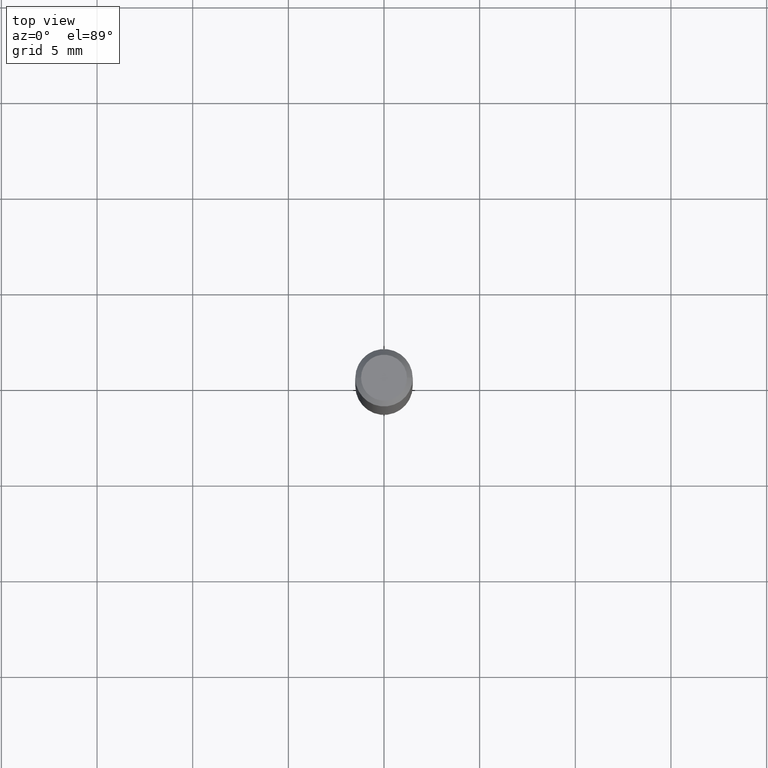
[diagram: clean part render]
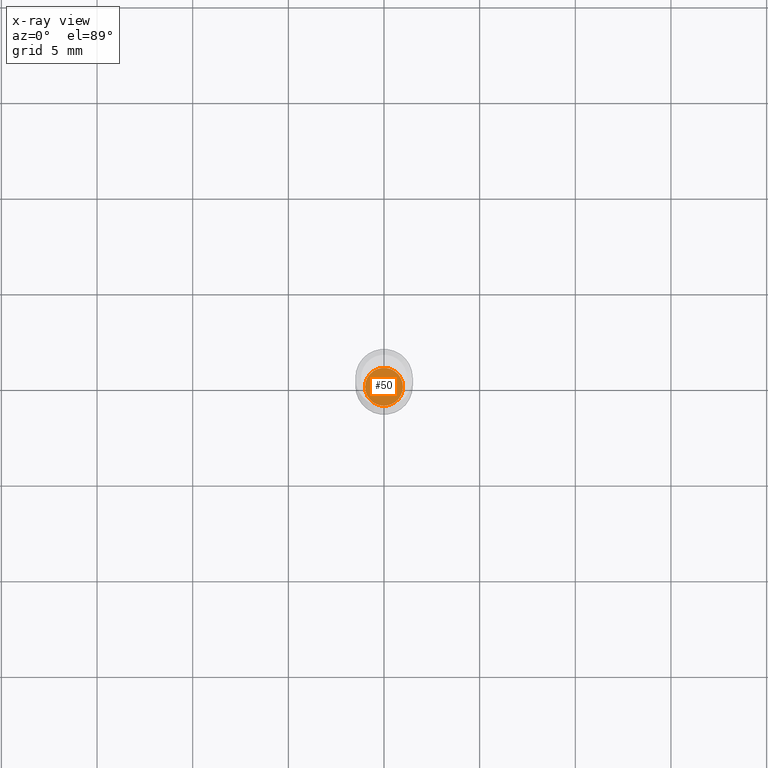
[diagram: x-ray — body ghosted, one internal face saturated and labeled with its STEP entity id]
A machine part, top view, then the same camera in x-ray: the body is ghosted and one INTERNAL B-rep face — a face not visible from any outside direction — is saturated and labeled: STEP entity #50.
In plain terms, the highlighted planar face has unit normal (-0, 0, 1).
Its self-contained STEP definition (entity closure, byte-faithful):
#17 = EDGE_LOOP ( 'NONE', ( #424, #340 ) ) ;
#25 = CARTESIAN_POINT ( 'NONE',  ( 2.676565608369631794E-29, -3.821426325363822773E-15, -1.094499999999999806 ) ) ;
#37 = CIRCLE ( 'NONE', #433, 0.03905000000000000138 ) ;
#50 = ADVANCED_FACE ( 'NONE', ( #407 ), #171, .F. ) ;
#104 = CIRCLE ( 'NONE', #355, 0.03905000000000000138 ) ;
#116 = VERTEX_POINT ( 'NONE', #310 ) ;
#131 = DIRECTION ( 'NONE',  ( -2.438088387897960049E-29, 3.491481338843145188E-15, 1.000000000000000000 ) ) ;
#155 = DIRECTION ( 'NONE',  ( -2.445468806185136597E-29, 3.491481338843145583E-15, 1.000000000000000000 ) ) ;
#171 = PLANE ( 'NONE',  #379 ) ;
#172 = EDGE_CURVE ( 'NONE', #422, #116, #37, .T. ) ;
#222 = DIRECTION ( 'NONE',  ( -2.445468806185136597E-29, 3.491481338843145583E-15, 1.000000000000000000 ) ) ;
#247 = CARTESIAN_POINT ( 'NONE',  ( -0.03905000000000000138, -3.541310159875392243E-15, -1.094499999999999806 ) ) ;
#291 = EDGE_CURVE ( 'NONE', #116, #422, #104, .T. ) ;
#298 = DIRECTION ( 'NONE',  ( 1.000000000000000000, -6.982962677686265922E-15, 4.876176775795935793E-29 ) ) ;
#310 = CARTESIAN_POINT ( 'NONE',  ( 0.03905000000000000138, -4.094111017927471097E-15, -1.094499999999999806 ) ) ;
#313 = CARTESIAN_POINT ( 'NONE',  ( 2.676565608369631794E-29, -3.821426325363822773E-15, -1.094499999999999806 ) ) ;
#340 = ORIENTED_EDGE ( 'NONE', *, *, #172, .F. ) ;
#352 = DIRECTION ( 'NONE',  ( 1.000000000000000000, -6.982962677686266711E-15, 0.000000000000000000 ) ) ;
#355 = AXIS2_PLACEMENT_3D ( 'NONE', #25, #155, #352 ) ;
#379 = AXIS2_PLACEMENT_3D ( 'NONE', #404, #131, #298 ) ;
#384 = DIRECTION ( 'NONE',  ( 1.000000000000000000, -6.982962677686266711E-15, 0.000000000000000000 ) ) ;
#404 = CARTESIAN_POINT ( 'NONE',  ( 2.676565608369631794E-29, -3.821426325363822773E-15, -1.094499999999999806 ) ) ;
#407 = FACE_OUTER_BOUND ( 'NONE', #17, .T. ) ;
#422 = VERTEX_POINT ( 'NONE', #247 ) ;
#424 = ORIENTED_EDGE ( 'NONE', *, *, #291, .F. ) ;
#433 = AXIS2_PLACEMENT_3D ( 'NONE', #313, #222, #384 ) ;